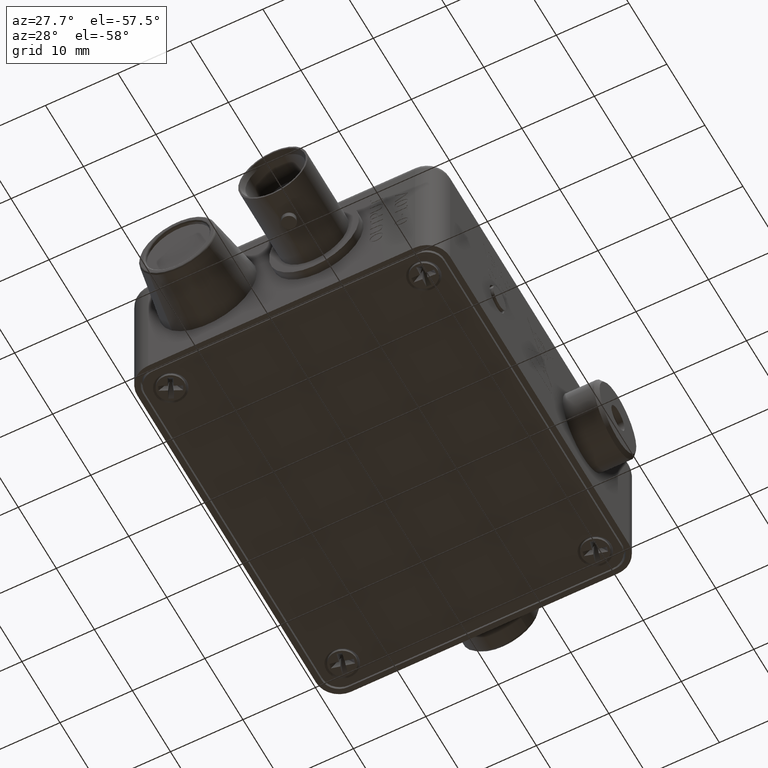
[diagram: clean part render]
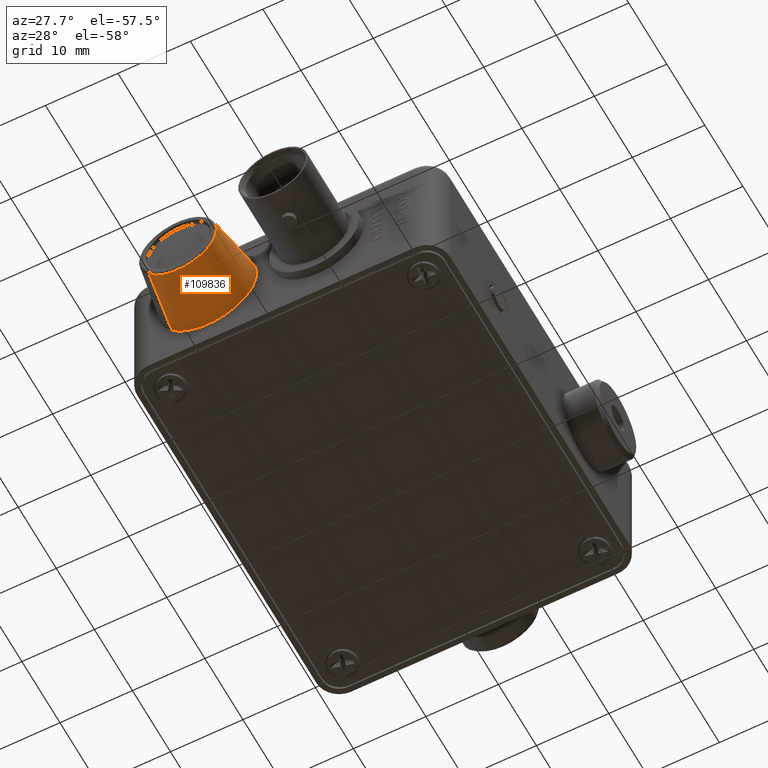
[diagram: same view with one face highlighted and labeled with its STEP entity id]
A machine part, auxiliary view. The second image highlights one B-rep face of the part: STEP entity #109836.
In plain terms, the highlighted conical surface has half-angle 10 deg.
Its self-contained STEP definition (entity closure, byte-faithful):
#5275 = AXIS2_PLACEMENT_3D ( 'NONE', #18994, #90346, #29249 ) ;
#7451 = DIRECTION ( 'NONE',  ( 0.7380313187773465100, 0.0000000000000000000, 0.6747664577494725300 ) ) ;
#15561 = CONICAL_SURFACE ( 'NONE', #59956, 0.2650000000000000700, 0.1745329251994333400 ) ;
#16097 = VERTEX_POINT ( 'NONE', #46665 ) ;
#18994 = CARTESIAN_POINT ( 'NONE',  ( 0.4499999999999988500, 1.561598427112379200E-017, 0.3999999999999989700 ) ) ;
#25182 = CARTESIAN_POINT ( 'NONE',  ( 0.6455782994759956500, 3.751355149603842600E-017, 0.5788131113036092400 ) ) ;
#28704 = DIRECTION ( 'NONE',  ( -0.1281577935668078400, 0.9848077530122080200, -0.1171719657389660400 ) ) ;
#29249 = DIRECTION ( 'NONE',  ( -0.7380313187773465100, -8.263232915062124700E-017, -0.6747664577494724100 ) ) ;
#30653 = VERTEX_POINT ( 'NONE', #130320 ) ;
#30716 = EDGE_CURVE ( 'NONE', #30653, #73994, #68381, .T. ) ;
#33874 = ORIENTED_EDGE ( 'NONE', *, *, #53792, .T. ) ;
#35867 = AXIS2_PLACEMENT_3D ( 'NONE', #129564, #68548, #7451 ) ;
#37179 = LINE ( 'NONE', #25182, #91453 ) ;
#42260 = EDGE_CURVE ( 'NONE', #73994, #16097, #122069, .T. ) ;
#46264 = EDGE_LOOP ( 'NONE', ( #70514, #33874, #108042, #64447 ) ) ;
#46665 = CARTESIAN_POINT ( 'NONE',  ( 0.6455782994759956500, 3.751355149603844400E-017, 0.5788131113036092400 ) ) ;
#53792 = EDGE_CURVE ( 'NONE', #109587, #30653, #76103, .T. ) ;
#55487 = FACE_OUTER_BOUND ( 'NONE', #46264, .T. ) ;
#59956 = AXIS2_PLACEMENT_3D ( 'NONE', #65544, #64679, #76263 ) ;
#62037 = CARTESIAN_POINT ( 'NONE',  ( 0.6050105241344847500, -0.3117364817766691300, 0.5417228505389086700 ) ) ;
#64447 = ORIENTED_EDGE ( 'NONE', *, *, #42260, .T. ) ;
#64679 = DIRECTION ( 'NONE',  ( 2.027184870627574200E-031, 1.000000000000000000, -1.224606353822364700E-016 ) ) ;
#65544 = CARTESIAN_POINT ( 'NONE',  ( 0.4499999999999988500, 1.561598427112379200E-017, 0.3999999999999989700 ) ) ;
#68381 = LINE ( 'NONE', #79527, #95457 ) ;
#68548 = DIRECTION ( 'NONE',  ( 2.027184870627574200E-031, 1.000000000000000000, -1.224606353822364700E-016 ) ) ;
#70514 = ORIENTED_EDGE ( 'NONE', *, *, #128355, .F. ) ;
#73994 = VERTEX_POINT ( 'NONE', #120889 ) ;
#76103 = CIRCLE ( 'NONE', #35867, 0.2100324473916404800 ) ;
#76263 = DIRECTION ( 'NONE',  ( -0.7380313187773465100, -8.263232915062124700E-017, -0.6747664577494724100 ) ) ;
#79527 = CARTESIAN_POINT ( 'NONE',  ( 0.2544217005240019800, -6.281582953790846600E-018, 0.2211868886963886900 ) ) ;
#86265 = DIRECTION ( 'NONE',  ( 0.1281577935668078400, 0.9848077530122080200, 0.1171719657389657900 ) ) ;
#90346 = DIRECTION ( 'NONE',  ( -2.027184870627574200E-031, -1.000000000000000000, 1.224606353822364700E-016 ) ) ;
#91453 = VECTOR ( 'NONE', #86265, 39.37007874015748900 ) ;
#95457 = VECTOR ( 'NONE', #28704, 39.37007874015748900 ) ;
#108042 = ORIENTED_EDGE ( 'NONE', *, *, #30716, .T. ) ;
#109587 = VERTEX_POINT ( 'NONE', #62037 ) ;
#109836 = ADVANCED_FACE ( 'NONE', ( #55487 ), #15561, .T. ) ;
#120889 = CARTESIAN_POINT ( 'NONE',  ( 0.2544217005240019800, -6.281582953790854300E-018, 0.2211868886963886900 ) ) ;
#122069 = CIRCLE ( 'NONE', #5275, 0.2650000000000000700 ) ;
#128355 = EDGE_CURVE ( 'NONE', #109587, #16097, #37179, .T. ) ;
#129564 = CARTESIAN_POINT ( 'NONE',  ( 0.4499999999999988500, -0.3117364817766691300, 0.3999999999999990200 ) ) ;
#130320 = CARTESIAN_POINT ( 'NONE',  ( 0.2949894758655127700, -0.3117364817766691300, 0.2582771494610893200 ) ) ;